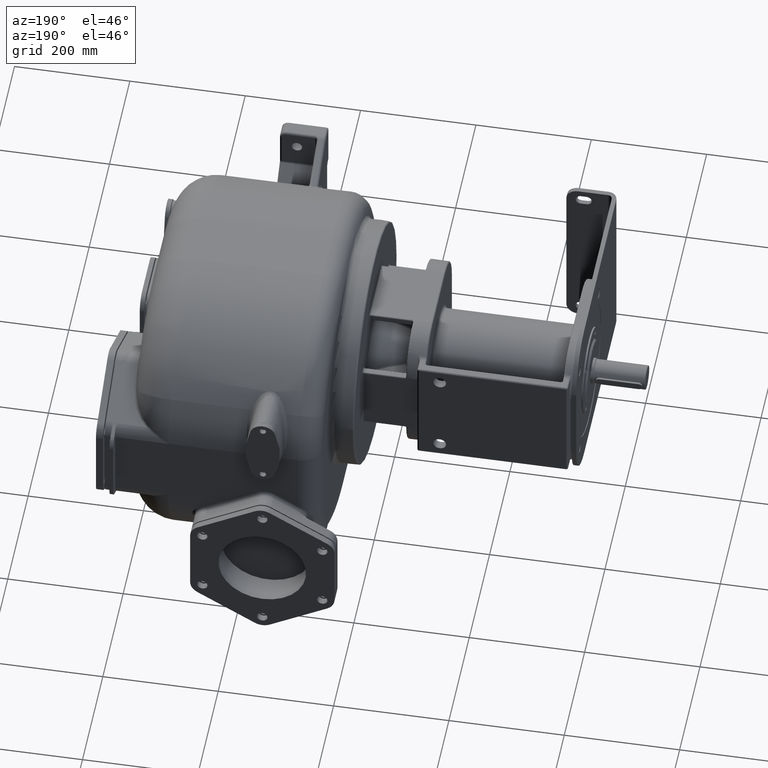
[diagram: clean part render]
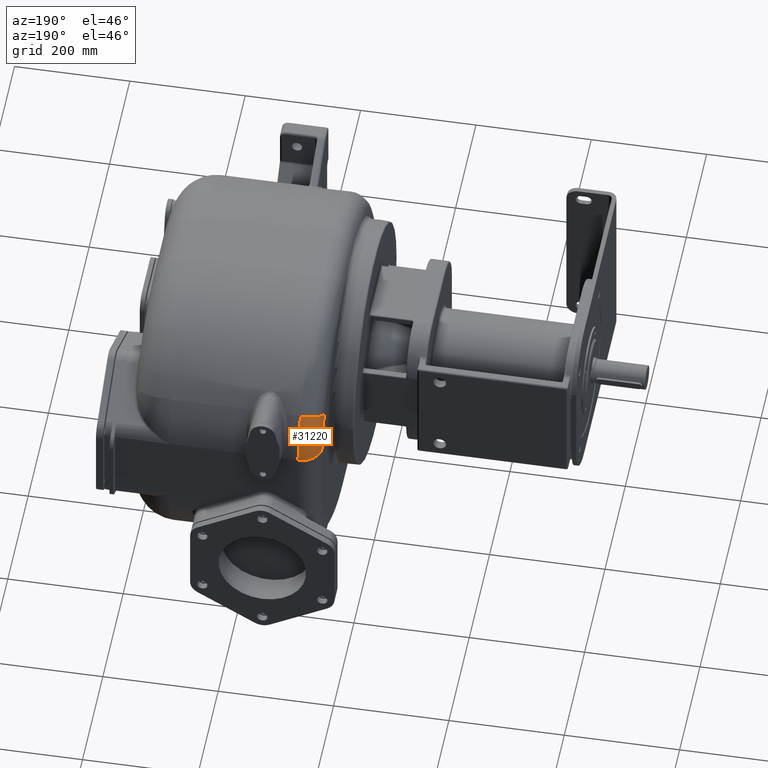
[diagram: same view with one face highlighted and labeled with its STEP entity id]
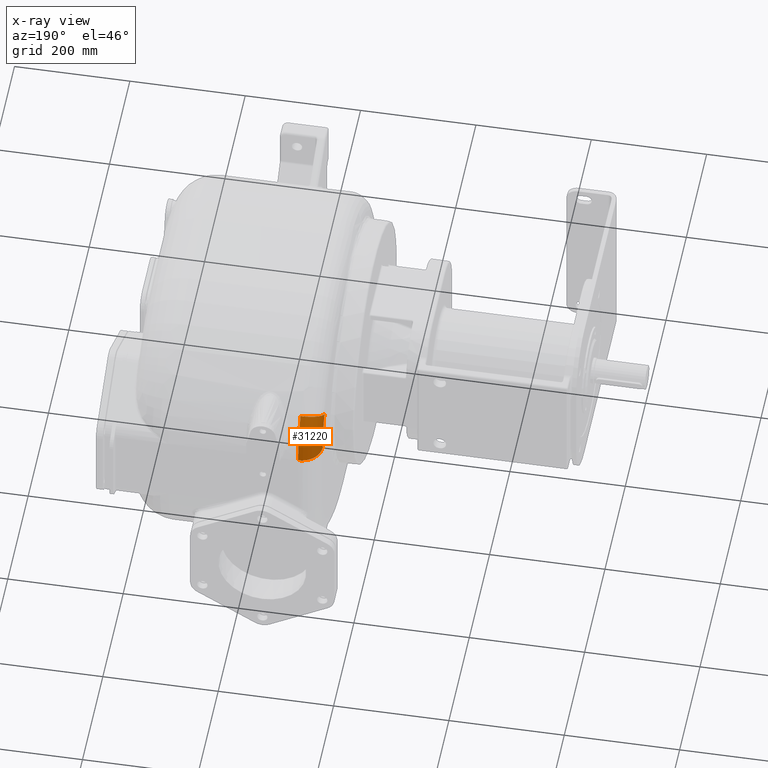
[diagram: x-ray of the same camera — body ghosted, the highlighted face saturated]
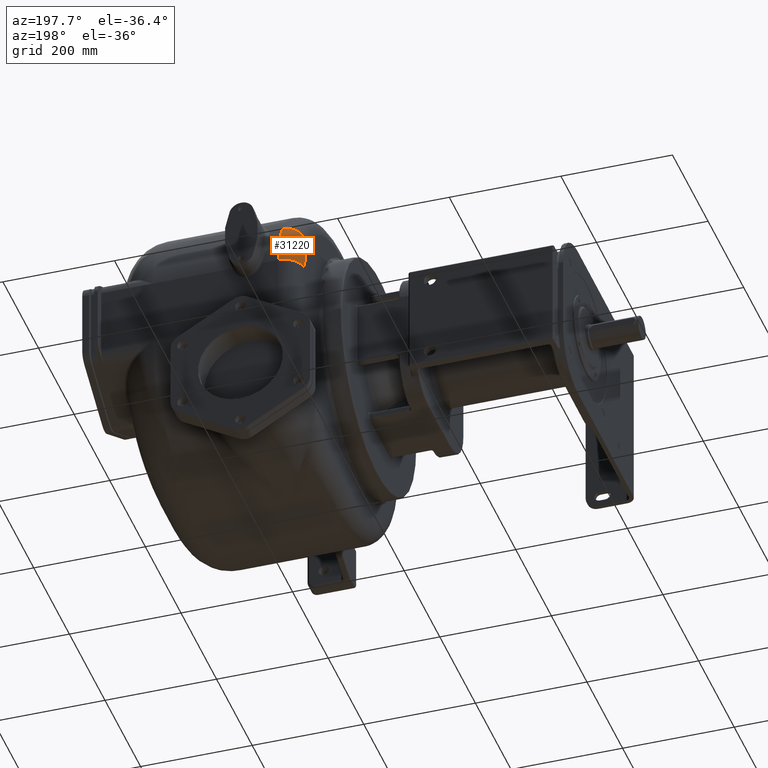
[diagram: same view with one face highlighted and labeled with its STEP entity id]
A machine part, auxiliary view. The second image highlights one B-rep face of the part: STEP entity #31220.
The next image is the same camera in x-ray: the body ghosted, the highlighted face saturated — about 0% of this face is hidden behind the body in this view.
A second angle (auxiliary view) of the same face is appended — the face is thin or edge-on in the first view.
In plain terms, the highlighted toroidal blend (fillet) surface has major radius 116.917 mm and minor (blend) radius 36 mm.
Its self-contained STEP definition (entity closure, byte-faithful):
#5974=CARTESIAN_POINT('',(-1.05E2,4.570833333333E2,3.462177826491E1));
#5975=DIRECTION('',(-1.E0,0.E0,0.E0));
#5976=DIRECTION('',(0.E0,8.379594898725E-1,5.457324374936E-1));
#5977=AXIS2_PLACEMENT_3D('',#5974,#5975,#5976);
#5979=CARTESIAN_POINT('',(-1.05E2,5.550547636909E2,9.842699574853E1));
#5980=DIRECTION('',(0.E0,5.457324374936E-1,-8.379594898725E-1));
#5981=DIRECTION('',(-1.E0,0.E0,0.E0));
#5982=AXIS2_PLACEMENT_3D('',#5979,#5980,#5981);
#5998=CARTESIAN_POINT('',(-1.05E2,5.74E2,3.462177826491E1));
#5999=DIRECTION('',(0.E0,0.E0,-1.E0));
#6000=DIRECTION('',(-1.E0,0.E0,0.E0));
#6001=AXIS2_PLACEMENT_3D('',#5998,#5999,#6000);
#6563=CARTESIAN_POINT('',(-1.41E2,4.570833333333E2,3.462177826491E1));
#6564=DIRECTION('',(-1.E0,0.E0,0.E0));
#6565=DIRECTION('',(0.E0,8.379594898725E-1,5.457324374936E-1));
#6566=AXIS2_PLACEMENT_3D('',#6563,#6564,#6565);
#22591=CARTESIAN_POINT('',(-1.41E2,5.74E2,3.462177826491E1));
#22593=VERTEX_POINT('',#22591);
#22606=CARTESIAN_POINT('',(-1.41E2,5.550547636909E2,9.842699574853E1));
#22608=VERTEX_POINT('',#22606);
#22609=CARTESIAN_POINT('',(-1.05E2,5.852213053263E2,1.180733634983E2));
#22610=VERTEX_POINT('',#22609);
#22611=CARTESIAN_POINT('',(-1.05E2,6.1E2,3.462177826491E1));
#22612=VERTEX_POINT('',#22611);
#31206=CARTESIAN_POINT('',(-1.05E2,4.570833333333E2,3.462177826491E1));
#31207=DIRECTION('',(-1.E0,0.E0,0.E0));
#31208=DIRECTION('',(0.E0,8.331555177585E-1,5.530387719036E-1));
#31209=AXIS2_PLACEMENT_3D('',#31206,#31207,#31208);
#31210=TOROIDAL_SURFACE('',#31209,1.169166666667E2,3.6E1);
#31212=ORIENTED_EDGE('',*,*,#31211,.T.);
#31213=ORIENTED_EDGE('',*,*,#31199,.F.);
#31215=ORIENTED_EDGE('',*,*,#31214,.F.);
#31217=ORIENTED_EDGE('',*,*,#31216,.T.);
#31218=EDGE_LOOP('',(#31212,#31213,#31215,#31217));
#31219=FACE_OUTER_BOUND('',#31218,.F.);
#31220=ADVANCED_FACE('',(#31219),#31210,.T.);
#5978=CIRCLE('',#5977,1.529166666667E2);
#5983=CIRCLE('',#5982,3.6E1);
#6002=CIRCLE('',#6001,3.6E1);
#6567=CIRCLE('',#6566,1.169166666667E2);
#31199=EDGE_CURVE('',#22610,#22612,#5978,.T.);
#31211=EDGE_CURVE('',#22593,#22612,#6002,.T.);
#31214=EDGE_CURVE('',#22608,#22610,#5983,.T.);
#31216=EDGE_CURVE('',#22608,#22593,#6567,.T.);